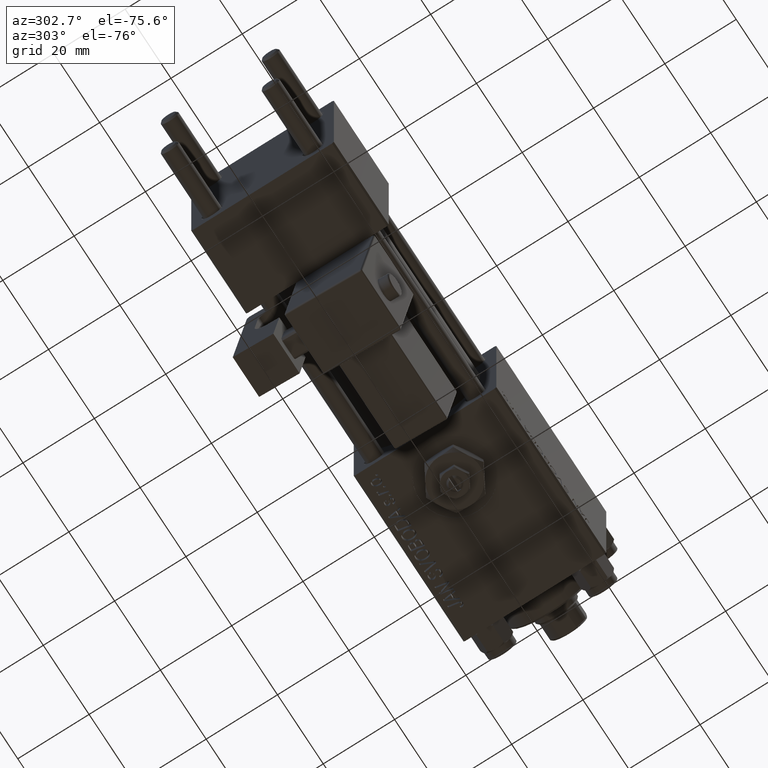
[diagram: clean part render]
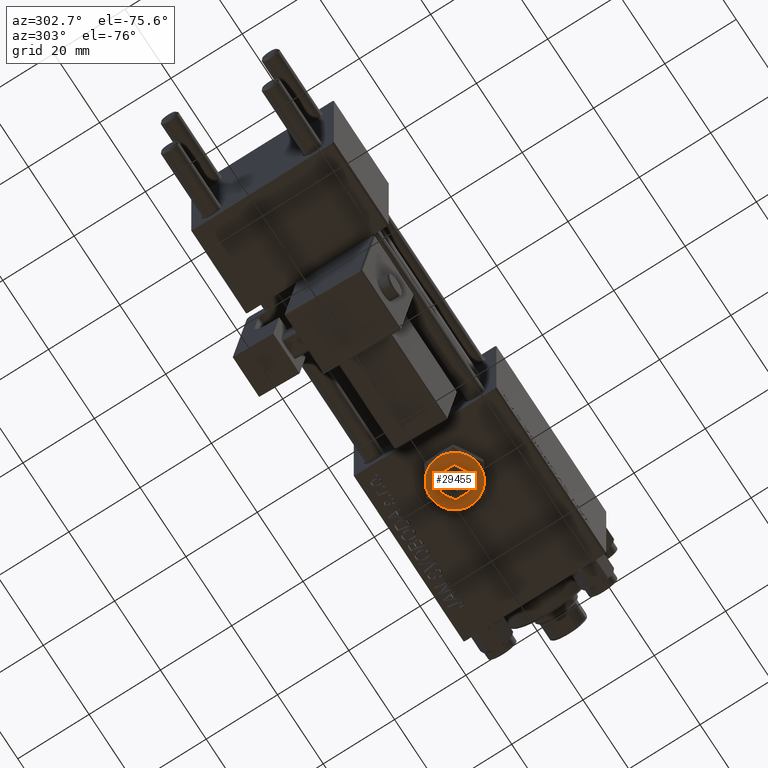
[diagram: same view with one face highlighted and labeled with its STEP entity id]
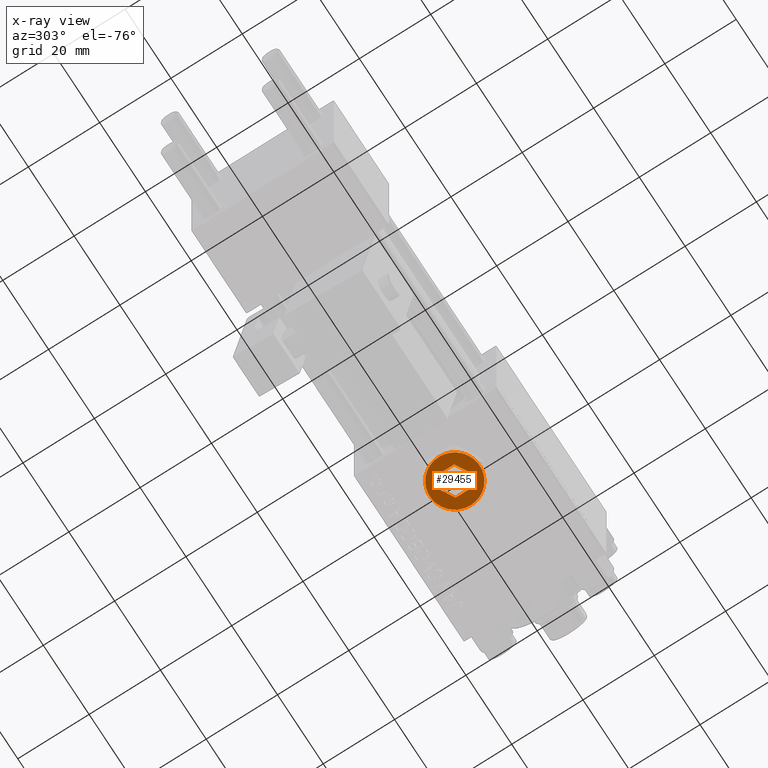
[diagram: x-ray of the same camera — body ghosted, the highlighted face saturated]
A machine part, auxiliary view. The second image highlights one B-rep face of the part: STEP entity #29455.
The next image is the same camera in x-ray: the body ghosted, the highlighted face saturated — about 0% of this face is hidden behind the body in this view.
In plain terms, the highlighted planar face has unit normal (0, 0, -1).
Its self-contained STEP definition (entity closure, byte-faithful):
#358 = EDGE_CURVE ( 'NONE', #43793, #29121, #15552, .T. ) ;
#441 = DIRECTION ( 'NONE',  ( 0.000000000000000000, 0.000000000000000000, 1.000000000000000000 ) ) ;
#652 = DIRECTION ( 'NONE',  ( 0.000000000000000000, 0.000000000000000000, 1.000000000000000000 ) ) ;
#660 = LINE ( 'NONE', #1211, #2113 ) ;
#901 = VERTEX_POINT ( 'NONE', #13556 ) ;
#1158 = CARTESIAN_POINT ( 'NONE',  ( 3.500000000000000000, -2.020725942163690281, 4.299999999999999822 ) ) ;
#1204 = ORIENTED_EDGE ( 'NONE', *, *, #48941, .T. ) ;
#1211 = CARTESIAN_POINT ( 'NONE',  ( 3.499999999999999556, -2.020725942163690281, 4.299999999999999822 ) ) ;
#1488 = LINE ( 'NONE', #18916, #49632 ) ;
#1527 = DIRECTION ( 'NONE',  ( 1.000000000000000000, 0.000000000000000000, -0.000000000000000000 ) ) ;
#2113 = VECTOR ( 'NONE', #51051, 1000.000000000000000 ) ;
#2191 = VECTOR ( 'NONE', #7617, 1000.000000000000114 ) ;
#2694 = LINE ( 'NONE', #31341, #45622 ) ;
#3263 = DIRECTION ( 'NONE',  ( 1.000000000000000000, 0.000000000000000000, 0.000000000000000000 ) ) ;
#4390 = ORIENTED_EDGE ( 'NONE', *, *, #39803, .F. ) ;
#4439 = CARTESIAN_POINT ( 'NONE',  ( -3.499999999999998668, -2.020725942163689837, 4.299999999999999822 ) ) ;
#4713 = CARTESIAN_POINT ( 'NONE',  ( 6.999999999999994671, 3.004629197474313724E-15, 4.299999999999999822 ) ) ;
#4791 = DIRECTION ( 'NONE',  ( 0.000000000000000000, 0.000000000000000000, 1.000000000000000000 ) ) ;
#4806 = FACE_BOUND ( 'NONE', #19940, .T. ) ;
#4982 = DIRECTION ( 'NONE',  ( 0.8660254037844385966, -0.4999999999999998890, 0.000000000000000000 ) ) ;
#5201 = ORIENTED_EDGE ( 'NONE', *, *, #5425, .F. ) ;
#5425 = EDGE_CURVE ( 'NONE', #52853, #19028, #22208, .T. ) ;
#5888 = CIRCLE ( 'NONE', #33698, 7.000000000000001776 ) ;
#6128 = DIRECTION ( 'NONE',  ( -0.8660254037844387076, 0.4999999999999998335, 0.000000000000000000 ) ) ;
#6288 = ORIENTED_EDGE ( 'NONE', *, *, #26749, .F. ) ;
#6694 = ORIENTED_EDGE ( 'NONE', *, *, #41922, .T. ) ;
#6768 = VERTEX_POINT ( 'NONE', #4713 ) ;
#7617 = DIRECTION ( 'NONE',  ( 0.8660254037844388186, 0.4999999999999996669, 0.000000000000000000 ) ) ;
#8350 = CARTESIAN_POINT ( 'NONE',  ( 0.000000000000000000, 0.000000000000000000, 4.299999999999999822 ) ) ;
#10146 = ORIENTED_EDGE ( 'NONE', *, *, #21824, .T. ) ;
#10465 = DIRECTION ( 'NONE',  ( 1.000000000000000000, 0.000000000000000000, 0.000000000000000000 ) ) ;
#12514 = EDGE_CURVE ( 'NONE', #901, #52853, #1488, .T. ) ;
#13556 = CARTESIAN_POINT ( 'NONE',  ( 3.499999999999998224, 2.020725942163691613, 4.299999999999999822 ) ) ;
#13605 = CARTESIAN_POINT ( 'NONE',  ( -7.000000000000001776, -2.253471898105739040E-15, 4.299999999999999822 ) ) ;
#14259 = CARTESIAN_POINT ( 'NONE',  ( 0.000000000000000000, 0.000000000000000000, 4.299999999999999822 ) ) ;
#15552 = CIRCLE ( 'NONE', #49470, 7.000000000000001776 ) ;
#16311 = CARTESIAN_POINT ( 'NONE',  ( 0.000000000000000000, 0.000000000000000000, 4.299999999999999822 ) ) ;
#16365 = VERTEX_POINT ( 'NONE', #13605 ) ;
#18480 = CARTESIAN_POINT ( 'NONE',  ( 0.000000000000000000, 4.041451884327380562, 4.299999999999999822 ) ) ;
#18916 = CARTESIAN_POINT ( 'NONE',  ( 3.499999999999998224, 2.020725942163691613, 4.299999999999999822 ) ) ;
#19028 = VERTEX_POINT ( 'NONE', #45977 ) ;
#19101 = ORIENTED_EDGE ( 'NONE', *, *, #27860, .F. ) ;
#19392 = AXIS2_PLACEMENT_3D ( 'NONE', #32976, #49561, #26689 ) ;
#19940 = EDGE_LOOP ( 'NONE', ( #5201, #32589, #19101, #6288, #4390, #26490 ) ) ;
#19948 = AXIS2_PLACEMENT_3D ( 'NONE', #16311, #49526, #33482 ) ;
#21361 = CARTESIAN_POINT ( 'NONE',  ( 0.000000000000000000, 0.000000000000000000, 4.299999999999999822 ) ) ;
#21362 = VERTEX_POINT ( 'NONE', #26356 ) ;
#21824 = EDGE_CURVE ( 'NONE', #16365, #21362, #42025, .T. ) ;
#22135 = CARTESIAN_POINT ( 'NONE',  ( -3.500000000000000888, 6.062177826491073063, 4.299999999999999822 ) ) ;
#22208 = LINE ( 'NONE', #34761, #42604 ) ;
#23156 = CARTESIAN_POINT ( 'NONE',  ( -3.499999999999998668, -2.020725942163689837, 4.299999999999999822 ) ) ;
#23177 = CARTESIAN_POINT ( 'NONE',  ( 0.000000000000000000, 0.000000000000000000, 4.299999999999999822 ) ) ;
#23676 = DIRECTION ( 'NONE',  ( 1.073081856240828196E-16, -1.000000000000000000, 0.000000000000000000 ) ) ;
#23959 = CARTESIAN_POINT ( 'NONE',  ( -2.443687887572056883E-16, -4.041451884327378785, 4.299999999999999822 ) ) ;
#24763 = EDGE_CURVE ( 'NONE', #19028, #46414, #2694, .T. ) ;
#26194 = EDGE_CURVE ( 'NONE', #6768, #43793, #39629, .T. ) ;
#26356 = CARTESIAN_POINT ( 'NONE',  ( -3.500000000000000000, -6.062177826491073063, 4.299999999999999822 ) ) ;
#26490 = ORIENTED_EDGE ( 'NONE', *, *, #24763, .F. ) ;
#26689 = DIRECTION ( 'NONE',  ( 1.000000000000000000, 0.000000000000000000, 0.000000000000000000 ) ) ;
#26749 = EDGE_CURVE ( 'NONE', #29891, #29062, #31898, .T. ) ;
#27440 = AXIS2_PLACEMENT_3D ( 'NONE', #8350, #4791, #29603 ) ;
#27773 = CIRCLE ( 'NONE', #19948, 7.000000000000001776 ) ;
#27860 = EDGE_CURVE ( 'NONE', #29062, #901, #660, .T. ) ;
#29062 = VERTEX_POINT ( 'NONE', #1158 ) ;
#29121 = VERTEX_POINT ( 'NONE', #22135 ) ;
#29455 = ADVANCED_FACE ( 'NONE', ( #38059, #4806 ), #51107, .T. ) ;
#29603 = DIRECTION ( 'NONE',  ( 1.000000000000000000, 0.000000000000000000, 0.000000000000000000 ) ) ;
#29891 = VERTEX_POINT ( 'NONE', #52427 ) ;
#31074 = VECTOR ( 'NONE', #4982, 1000.000000000000227 ) ;
#31341 = CARTESIAN_POINT ( 'NONE',  ( -3.499999999999999112, 2.020725942163690725, 4.299999999999999822 ) ) ;
#31429 = DIRECTION ( 'NONE',  ( 0.000000000000000000, 0.000000000000000000, 1.000000000000000000 ) ) ;
#31898 = LINE ( 'NONE', #23959, #2191 ) ;
#32589 = ORIENTED_EDGE ( 'NONE', *, *, #12514, .F. ) ;
#32832 = ORIENTED_EDGE ( 'NONE', *, *, #26194, .T. ) ;
#32976 = CARTESIAN_POINT ( 'NONE',  ( 0.000000000000000000, 0.000000000000000000, 4.299999999999999822 ) ) ;
#33047 = CARTESIAN_POINT ( 'NONE',  ( 3.500000000000000888, -6.062177826491073951, 4.299999999999999822 ) ) ;
#33482 = DIRECTION ( 'NONE',  ( 1.000000000000000000, 0.000000000000000000, 0.000000000000000000 ) ) ;
#33698 = AXIS2_PLACEMENT_3D ( 'NONE', #14259, #31429, #52091 ) ;
#34761 = CARTESIAN_POINT ( 'NONE',  ( 0.000000000000000000, 4.041451884327380562, 4.299999999999999822 ) ) ;
#35177 = EDGE_CURVE ( 'NONE', #21362, #51579, #5888, .T. ) ;
#38059 = FACE_OUTER_BOUND ( 'NONE', #41171, .T. ) ;
#38359 = ORIENTED_EDGE ( 'NONE', *, *, #35177, .T. ) ;
#38734 = AXIS2_PLACEMENT_3D ( 'NONE', #50835, #441, #1527 ) ;
#38968 = CIRCLE ( 'NONE', #42444, 7.000000000000001776 ) ;
#39629 = CIRCLE ( 'NONE', #27440, 7.000000000000001776 ) ;
#39803 = EDGE_CURVE ( 'NONE', #46414, #29891, #49924, .T. ) ;
#39817 = DIRECTION ( 'NONE',  ( 0.000000000000000000, 0.000000000000000000, 1.000000000000000000 ) ) ;
#41171 = EDGE_LOOP ( 'NONE', ( #6694, #32832, #44098, #1204, #10146, #38359 ) ) ;
#41922 = EDGE_CURVE ( 'NONE', #51579, #6768, #38968, .T. ) ;
#42025 = CIRCLE ( 'NONE', #19392, 7.000000000000001776 ) ;
#42444 = AXIS2_PLACEMENT_3D ( 'NONE', #21361, #652, #10465 ) ;
#42604 = VECTOR ( 'NONE', #42912, 1000.000000000000227 ) ;
#42912 = DIRECTION ( 'NONE',  ( -0.8660254037844385966, -0.4999999999999998890, 0.000000000000000000 ) ) ;
#43793 = VERTEX_POINT ( 'NONE', #46382 ) ;
#44098 = ORIENTED_EDGE ( 'NONE', *, *, #358, .T. ) ;
#45622 = VECTOR ( 'NONE', #23676, 1000.000000000000000 ) ;
#45977 = CARTESIAN_POINT ( 'NONE',  ( -3.499999999999999112, 2.020725942163690725, 4.299999999999999822 ) ) ;
#46382 = CARTESIAN_POINT ( 'NONE',  ( 3.500000000000000444, 6.062177826491073063, 4.299999999999999822 ) ) ;
#46414 = VERTEX_POINT ( 'NONE', #23156 ) ;
#48941 = EDGE_CURVE ( 'NONE', #29121, #16365, #27773, .T. ) ;
#49470 = AXIS2_PLACEMENT_3D ( 'NONE', #23177, #39817, #3263 ) ;
#49526 = DIRECTION ( 'NONE',  ( 0.000000000000000000, 0.000000000000000000, 1.000000000000000000 ) ) ;
#49561 = DIRECTION ( 'NONE',  ( 0.000000000000000000, 0.000000000000000000, 1.000000000000000000 ) ) ;
#49632 = VECTOR ( 'NONE', #6128, 1000.000000000000114 ) ;
#49924 = LINE ( 'NONE', #4439, #31074 ) ;
#50835 = CARTESIAN_POINT ( 'NONE',  ( 0.000000000000000000, 0.000000000000000000, 4.299999999999999822 ) ) ;
#51051 = DIRECTION ( 'NONE',  ( -3.219245568722483357E-16, 1.000000000000000000, 0.000000000000000000 ) ) ;
#51107 = PLANE ( 'NONE',  #38734 ) ;
#51579 = VERTEX_POINT ( 'NONE', #33047 ) ;
#52091 = DIRECTION ( 'NONE',  ( 1.000000000000000000, 0.000000000000000000, 0.000000000000000000 ) ) ;
#52427 = CARTESIAN_POINT ( 'NONE',  ( -2.443687887572056883E-16, -4.041451884327378785, 4.299999999999999822 ) ) ;
#52853 = VERTEX_POINT ( 'NONE', #18480 ) ;